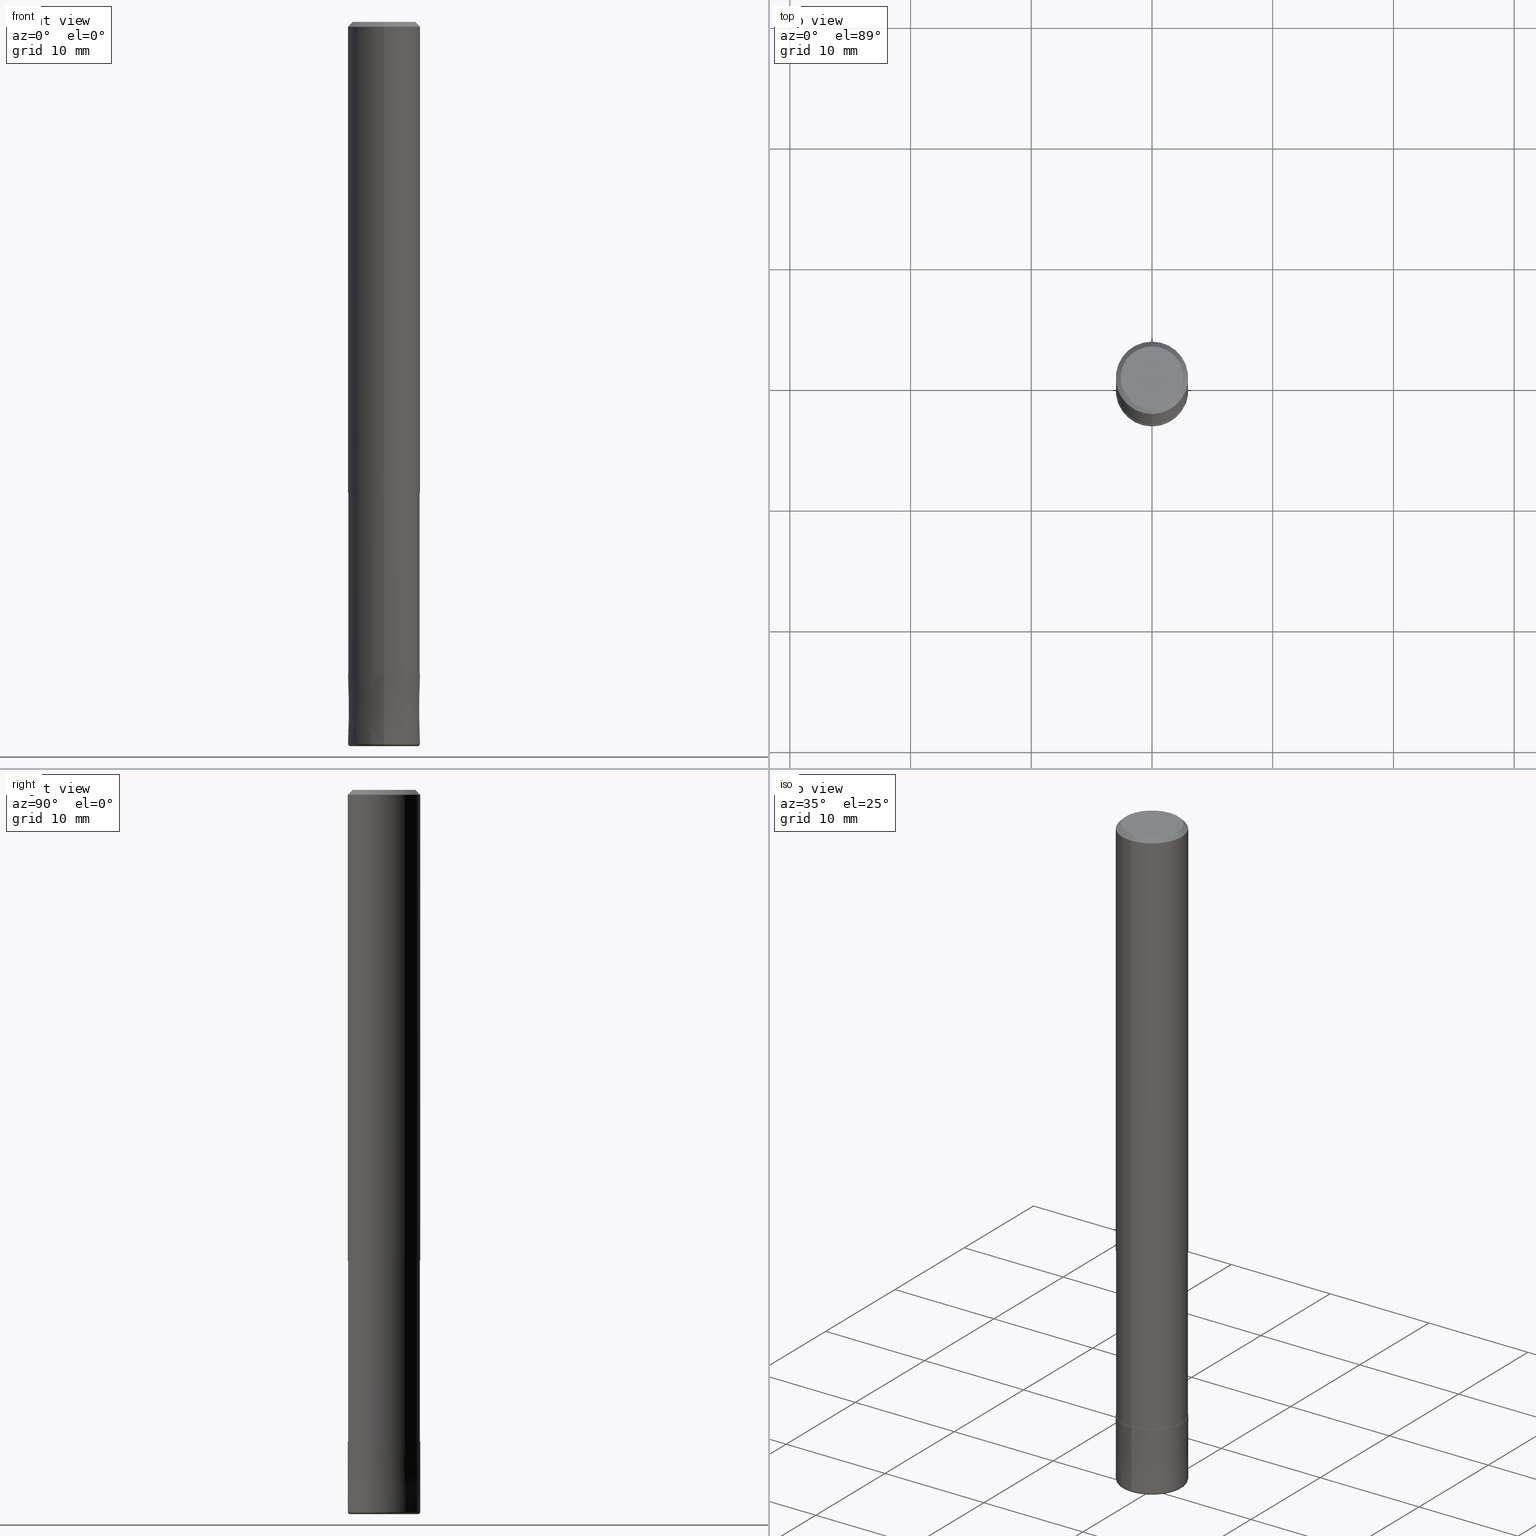
[diagram: canonical four-view strip — front | top / right | iso, engineering-drawing reading convention]
A machine part, canonical four-view strip (front | top / right | iso — engineering-drawing reading convention). The complete STEP part file that produces these views, byte-faithful:
ISO-10303-21;
HEADER;
FILE_DESCRIPTION(('no description'),'unknown implementation level');
FILE_NAME('HHRS6060-02-210-Huellk.stp','  ',('CIMSOURCE GmbH'),('CADClick - KiM GmbH - www.kimweb.de'),'unknown preprocess','ACIS','unknown authorization');
FILE_SCHEMA(('automotive_design'));
ENDSEC;
DATA;
#1=MECHANICAL_DESIGN_GEOMETRIC_PRESENTATION_REPRESENTATION(' ',(#14,#15,#16,#17,#18,#19,#20,#21,#22,#23,#24,#25,#26,#27,#28,#29,#30,#31,#32,#33,#34,#35,#36,#37,#38,#39,#40,#41,#42,#43,#44,#45,#46,#47,#48,#49,#50,#51,#52,#53,#54,#55,#56,#57,#58,#59,#60,#61,#62,#63,#64,#65,#66,#67,#68,#69,#70,#71,#72,#73,#74,#75,#76,#77,#78,#79,#80,#81,#82,#83,#84,#85,#86,#87,#88,#89,#90,#91,#92,#93,#94,#95,#96,#97),#10);
#2=PRODUCT_DEFINITION_CONTEXT('',#98,'design');
#3=APPLICATION_PROTOCOL_DEFINITION('INTERNATIONAL STANDARD','automotive_design',1994,#98);
#4=PRODUCT_CATEGORY_RELATIONSHIP('NONE','NONE',#99,#100);
#5=SHAPE_DEFINITION_REPRESENTATION(#101,#102);
#6=PRODUCT_DEFINITION_CONTEXT('',#103,'design');
#7=APPLICATION_PROTOCOL_DEFINITION('INTERNATIONAL STANDARD','automotive_design',1994,#103);
#8=PRODUCT_CATEGORY_RELATIONSHIP('NONE','NONE',#104,#105);
#9=SHAPE_DEFINITION_REPRESENTATION(#106,#107);
#10= (GEOMETRIC_REPRESENTATION_CONTEXT(3)GLOBAL_UNCERTAINTY_ASSIGNED_CONTEXT((#110))GLOBAL_UNIT_ASSIGNED_CONTEXT((#112,#113,#114))REPRESENTATION_CONTEXT('NONE','WORKSPACE'));
#14=STYLED_ITEM('',(#116),#117);
#15=STYLED_ITEM('',(#118),#119);
#16=STYLED_ITEM('',(#120),#121);
#17=STYLED_ITEM('',(#122),#123);
#18=STYLED_ITEM('',(#124),#125);
#19=STYLED_ITEM('',(#126),#127);
#20=STYLED_ITEM('',(#128),#129);
#21=STYLED_ITEM('',(#130),#131);
#22=STYLED_ITEM('',(#132),#133);
#23=STYLED_ITEM('',(#134),#135);
#24=STYLED_ITEM('',(#136),#137);
#25=STYLED_ITEM('',(#138),#139);
#26=STYLED_ITEM('',(#140),#141);
#27=STYLED_ITEM('',(#142),#143);
#28=STYLED_ITEM('',(#144),#145);
#29=STYLED_ITEM('',(#146),#147);
#30=STYLED_ITEM('',(#148),#149);
#31=STYLED_ITEM('',(#150),#151);
#32=STYLED_ITEM('',(#152),#153);
#33=STYLED_ITEM('',(#154),#155);
#34=STYLED_ITEM('',(#156),#157);
#35=STYLED_ITEM('',(#158),#159);
#36=STYLED_ITEM('',(#160),#161);
#37=STYLED_ITEM('',(#162),#163);
#38=STYLED_ITEM('',(#164),#165);
#39=STYLED_ITEM('',(#166),#167);
#40=STYLED_ITEM('',(#168),#169);
#41=STYLED_ITEM('',(#170),#171);
#42=STYLED_ITEM('',(#172),#173);
#43=STYLED_ITEM('',(#174),#175);
#44=STYLED_ITEM('',(#176),#177);
#45=STYLED_ITEM('',(#178),#179);
#46=STYLED_ITEM('',(#180),#181);
#47=STYLED_ITEM('',(#182),#183);
#48=STYLED_ITEM('',(#184),#185);
#49=STYLED_ITEM('',(#186),#187);
#50=STYLED_ITEM('',(#188),#189);
#51=STYLED_ITEM('',(#190),#191);
#52=STYLED_ITEM('',(#192),#193);
#53=STYLED_ITEM('',(#194),#195);
#54=STYLED_ITEM('',(#196),#197);
#55=STYLED_ITEM('',(#198),#199);
#56=STYLED_ITEM('',(#200),#201);
#57=STYLED_ITEM('',(#202),#203);
#58=STYLED_ITEM('',(#204),#205);
#59=STYLED_ITEM('',(#206),#207);
#60=STYLED_ITEM('',(#208),#209);
#61=STYLED_ITEM('',(#210),#211);
#62=STYLED_ITEM('',(#212),#213);
#63=STYLED_ITEM('',(#214),#215);
#64=STYLED_ITEM('',(#216),#217);
#65=STYLED_ITEM('',(#218),#219);
#66=STYLED_ITEM('',(#220),#221);
#67=STYLED_ITEM('',(#222),#223);
#68=STYLED_ITEM('',(#224),#225);
#69=STYLED_ITEM('',(#226),#227);
#70=STYLED_ITEM('',(#228),#229);
#71=STYLED_ITEM('',(#230),#231);
#72=STYLED_ITEM('',(#232),#233);
#73=STYLED_ITEM('',(#234),#235);
#74=STYLED_ITEM('',(#236),#237);
#75=STYLED_ITEM('',(#238),#239);
#76=STYLED_ITEM('',(#240),#241);
#77=STYLED_ITEM('',(#242),#243);
#78=STYLED_ITEM('',(#244),#245);
#79=STYLED_ITEM('',(#246),#247);
#80=STYLED_ITEM('',(#248),#249);
#81=STYLED_ITEM('',(#250),#251);
#82=STYLED_ITEM('',(#252),#253);
#83=STYLED_ITEM('',(#254),#255);
#84=STYLED_ITEM('',(#256),#257);
#85=STYLED_ITEM('',(#258),#259);
#86=STYLED_ITEM('',(#260),#261);
#87=STYLED_ITEM('',(#262),#263);
#88=STYLED_ITEM('',(#264),#265);
#89=STYLED_ITEM('',(#266),#267);
#90=STYLED_ITEM('',(#268),#269);
#91=STYLED_ITEM('',(#270),#271);
#92=STYLED_ITEM('',(#272),#273);
#93=STYLED_ITEM('',(#274),#275);
#94=STYLED_ITEM('',(#276),#277);
#95=STYLED_ITEM('',(#278),#279);
#96=STYLED_ITEM('',(#280),#281);
#97=STYLED_ITEM('',(#282),#283);
#98=APPLICATION_CONTEXT(' ');
#99=PRODUCT_CATEGORY('part','NONE');
#100=PRODUCT_RELATED_PRODUCT_CATEGORY('detail',' ',(#284));
#101=PRODUCT_DEFINITION_SHAPE('NONE','NONE',#285);
#102=ADVANCED_BREP_SHAPE_REPRESENTATION('1',(#139,#286),#10);
#103=APPLICATION_CONTEXT(' ');
#104=PRODUCT_CATEGORY('part','NONE');
#105=PRODUCT_RELATED_PRODUCT_CATEGORY('detail',' ',(#287));
#106=PRODUCT_DEFINITION_SHAPE('NONE','NONE',#288);
#107=ADVANCED_BREP_SHAPE_REPRESENTATION('2',(#197,#289),#10);
#110=UNCERTAINTY_MEASURE_WITH_UNIT(LENGTH_MEASURE(1.0E-006),#112,'','');
#112= (CONVERSION_BASED_UNIT('MILLIMETRE',#292)LENGTH_UNIT()NAMED_UNIT(#295));
#113= (NAMED_UNIT(#297)PLANE_ANGLE_UNIT()SI_UNIT($,.RADIAN.));
#114= (NAMED_UNIT(#297)SOLID_ANGLE_UNIT()SI_UNIT($,.STERADIAN.));
#116=PRESENTATION_STYLE_ASSIGNMENT((#303));
#117=VERTEX_POINT('',#304);
#118=PRESENTATION_STYLE_ASSIGNMENT((#305));
#119=VERTEX_POINT('',#306);
#120=PRESENTATION_STYLE_ASSIGNMENT((#307));
#121=EDGE_CURVE('',#255,#283,#308,.T.);
#122=PRESENTATION_STYLE_ASSIGNMENT((#309));
#123=EDGE_CURVE('',#177,#179,#310,.T.);
#124=PRESENTATION_STYLE_ASSIGNMENT((#311));
#125=ADVANCED_FACE('',(#312,#313),#314,.T.);
#126=PRESENTATION_STYLE_ASSIGNMENT((#315));
#127=ADVANCED_FACE('',(#316),#317,.T.);
#128=PRESENTATION_STYLE_ASSIGNMENT((#318));
#129=EDGE_CURVE('',#277,#187,#319,.T.);
#130=PRESENTATION_STYLE_ASSIGNMENT((#320));
#131=VERTEX_POINT('',#321);
#132=PRESENTATION_STYLE_ASSIGNMENT((#322));
#133=EDGE_CURVE('',#277,#191,#323,.T.);
#134=PRESENTATION_STYLE_ASSIGNMENT((#324));
#135=VERTEX_POINT('',#325);
#136=PRESENTATION_STYLE_ASSIGNMENT((#326));
#137=EDGE_CURVE('',#179,#151,#327,.T.);
#138=PRESENTATION_STYLE_ASSIGNMENT((#328));
#139=MANIFOLD_SOLID_BREP('1',#329);
#140=PRESENTATION_STYLE_ASSIGNMENT((#330));
#141=EDGE_CURVE('',#219,#145,#331,.T.);
#142=PRESENTATION_STYLE_ASSIGNMENT((#332));
#143=EDGE_CURVE('',#187,#119,#333,.T.);
#144=PRESENTATION_STYLE_ASSIGNMENT((#334));
#145=VERTEX_POINT('',#335);
#146=PRESENTATION_STYLE_ASSIGNMENT((#336));
#147=EDGE_CURVE('',#269,#267,#337,.T.);
#148=PRESENTATION_STYLE_ASSIGNMENT((#338));
#149=ADVANCED_FACE('',(#339),#340,.T.);
#150=PRESENTATION_STYLE_ASSIGNMENT((#341));
#151=VERTEX_POINT('',#342);
#152=PRESENTATION_STYLE_ASSIGNMENT((#343));
#153=EDGE_CURVE('',#131,#119,#344,.T.);
#154=PRESENTATION_STYLE_ASSIGNMENT((#345));
#155=ADVANCED_FACE('',(#346,#347),#348,.T.);
#156=PRESENTATION_STYLE_ASSIGNMENT((#349));
#157=VERTEX_POINT('',#350);
#158=PRESENTATION_STYLE_ASSIGNMENT((#351));
#159=EDGE_CURVE('',#269,#135,#352,.T.);
#160=PRESENTATION_STYLE_ASSIGNMENT((#353));
#161=EDGE_CURVE('',#119,#187,#354,.T.);
#162=PRESENTATION_STYLE_ASSIGNMENT((#355));
#163=VERTEX_POINT('',#356);
#164=PRESENTATION_STYLE_ASSIGNMENT((#357));
#165=ADVANCED_FACE('',(#358),#359,.T.);
#166=PRESENTATION_STYLE_ASSIGNMENT((#360));
#167=ADVANCED_FACE('',(#361),#362,.T.);
#168=PRESENTATION_STYLE_ASSIGNMENT((#363));
#169=EDGE_CURVE('',#265,#233,#364,.T.);
#170=PRESENTATION_STYLE_ASSIGNMENT((#365));
#171=ADVANCED_FACE('',(#366),#367,.T.);
#172=PRESENTATION_STYLE_ASSIGNMENT((#368));
#173=EDGE_CURVE('',#251,#151,#369,.T.);
#174=PRESENTATION_STYLE_ASSIGNMENT((#370));
#175=EDGE_CURVE('',#157,#267,#371,.T.);
#176=PRESENTATION_STYLE_ASSIGNMENT((#372));
#177=VERTEX_POINT('',#373);
#178=PRESENTATION_STYLE_ASSIGNMENT((#374));
#179=VERTEX_POINT('',#375);
#180=PRESENTATION_STYLE_ASSIGNMENT((#376));
#181=EDGE_CURVE('',#265,#145,#377,.T.);
#182=PRESENTATION_STYLE_ASSIGNMENT((#378));
#183=ADVANCED_FACE('',(#379),#380,.T.);
#184=PRESENTATION_STYLE_ASSIGNMENT((#381));
#185=ADVANCED_FACE('',(#382),#383,.T.);
#186=PRESENTATION_STYLE_ASSIGNMENT((#384));
#187=VERTEX_POINT('',#385);
#188=PRESENTATION_STYLE_ASSIGNMENT((#386));
#189=EDGE_CURVE('',#233,#219,#387,.T.);
#190=PRESENTATION_STYLE_ASSIGNMENT((#388));
#191=VERTEX_POINT('',#389);
#192=PRESENTATION_STYLE_ASSIGNMENT((#390));
#193=ADVANCED_FACE('',(#391),#392,.T.);
#194=PRESENTATION_STYLE_ASSIGNMENT((#393));
#195=EDGE_CURVE('',#117,#235,#394,.T.);
#196=PRESENTATION_STYLE_ASSIGNMENT((#395));
#197=MANIFOLD_SOLID_BREP('2',#396);
#198=PRESENTATION_STYLE_ASSIGNMENT((#397));
#199=ADVANCED_FACE('',(#398),#399,.T.);
#200=PRESENTATION_STYLE_ASSIGNMENT((#400));
#201=EDGE_CURVE('',#227,#163,#401,.T.);
#202=PRESENTATION_STYLE_ASSIGNMENT((#402));
#203=EDGE_CURVE('',#151,#251,#403,.T.);
#204=PRESENTATION_STYLE_ASSIGNMENT((#404));
#205=EDGE_CURVE('',#145,#265,#405,.T.);
#206=PRESENTATION_STYLE_ASSIGNMENT((#406));
#207=ADVANCED_FACE('',(#407,#408),#409,.T.);
#208=PRESENTATION_STYLE_ASSIGNMENT((#410));
#209=EDGE_CURVE('',#227,#255,#411,.T.);
#210=PRESENTATION_STYLE_ASSIGNMENT((#412));
#211=EDGE_CURVE('',#269,#117,#413,.T.);
#212=PRESENTATION_STYLE_ASSIGNMENT((#414));
#213=EDGE_CURVE('',#157,#135,#415,.T.);
#214=PRESENTATION_STYLE_ASSIGNMENT((#416));
#215=EDGE_CURVE('',#235,#117,#417,.T.);
#216=PRESENTATION_STYLE_ASSIGNMENT((#418));
#217=EDGE_CURVE('',#163,#227,#419,.T.);
#218=PRESENTATION_STYLE_ASSIGNMENT((#420));
#219=VERTEX_POINT('',#421);
#220=PRESENTATION_STYLE_ASSIGNMENT((#422));
#221=ADVANCED_FACE('',(#423),#424,.T.);
#222=PRESENTATION_STYLE_ASSIGNMENT((#425));
#223=EDGE_CURVE('',#267,#157,#426,.T.);
#224=PRESENTATION_STYLE_ASSIGNMENT((#427));
#225=EDGE_CURVE('',#131,#261,#428,.T.);
#226=PRESENTATION_STYLE_ASSIGNMENT((#429));
#227=VERTEX_POINT('',#430);
#228=PRESENTATION_STYLE_ASSIGNMENT((#431));
#229=EDGE_CURVE('',#235,#135,#432,.T.);
#230=PRESENTATION_STYLE_ASSIGNMENT((#433));
#231=ADVANCED_FACE('',(#434,#435),#436,.T.);
#232=PRESENTATION_STYLE_ASSIGNMENT((#437));
#233=VERTEX_POINT('',#438);
#234=PRESENTATION_STYLE_ASSIGNMENT((#439));
#235=VERTEX_POINT('',#440);
#236=PRESENTATION_STYLE_ASSIGNMENT((#441));
#237=ADVANCED_FACE('',(#442),#443,.F.);
#238=PRESENTATION_STYLE_ASSIGNMENT((#444));
#239=EDGE_CURVE('',#219,#233,#445,.T.);
#240=PRESENTATION_STYLE_ASSIGNMENT((#446));
#241=EDGE_CURVE('',#187,#261,#447,.T.);
#242=PRESENTATION_STYLE_ASSIGNMENT((#448));
#243=EDGE_CURVE('',#179,#177,#449,.T.);
#244=PRESENTATION_STYLE_ASSIGNMENT((#450));
#245=EDGE_CURVE('',#251,#177,#451,.T.);
#246=PRESENTATION_STYLE_ASSIGNMENT((#452));
#247=EDGE_CURVE('',#119,#191,#453,.T.);
#248=PRESENTATION_STYLE_ASSIGNMENT((#454));
#249=ADVANCED_FACE('',(#455),#456,.T.);
#250=PRESENTATION_STYLE_ASSIGNMENT((#457));
#251=VERTEX_POINT('',#458);
#252=PRESENTATION_STYLE_ASSIGNMENT((#459));
#253=ADVANCED_FACE('',(#460),#461,.T.);
#254=PRESENTATION_STYLE_ASSIGNMENT((#462));
#255=VERTEX_POINT('',#463);
#256=PRESENTATION_STYLE_ASSIGNMENT((#464));
#257=EDGE_CURVE('',#191,#277,#465,.T.);
#258=PRESENTATION_STYLE_ASSIGNMENT((#466));
#259=EDGE_CURVE('',#283,#255,#467,.T.);
#260=PRESENTATION_STYLE_ASSIGNMENT((#468));
#261=VERTEX_POINT('',#469);
#262=PRESENTATION_STYLE_ASSIGNMENT((#470));
#263=EDGE_CURVE('',#261,#131,#471,.T.);
#264=PRESENTATION_STYLE_ASSIGNMENT((#472));
#265=VERTEX_POINT('',#473);
#266=PRESENTATION_STYLE_ASSIGNMENT((#474));
#267=VERTEX_POINT('',#475);
#268=PRESENTATION_STYLE_ASSIGNMENT((#476));
#269=VERTEX_POINT('',#477);
#270=PRESENTATION_STYLE_ASSIGNMENT((#478));
#271=ADVANCED_FACE('',(#479),#480,.F.);
#272=PRESENTATION_STYLE_ASSIGNMENT((#481));
#273=EDGE_CURVE('',#283,#163,#482,.T.);
#274=PRESENTATION_STYLE_ASSIGNMENT((#483));
#275=ADVANCED_FACE('',(#484),#485,.T.);
#276=PRESENTATION_STYLE_ASSIGNMENT((#486));
#277=VERTEX_POINT('',#487);
#278=PRESENTATION_STYLE_ASSIGNMENT((#488));
#279=EDGE_CURVE('',#135,#269,#489,.T.);
#280=PRESENTATION_STYLE_ASSIGNMENT((#490));
#281=ADVANCED_FACE('',(#491),#492,.T.);
#282=PRESENTATION_STYLE_ASSIGNMENT((#493));
#283=VERTEX_POINT('',#494);
#284=PRODUCT('1','1','PART-1-DESC',(#495));
#285=PRODUCT_DEFINITION('NONE','NONE',#496,#2);
#286=AXIS2_PLACEMENT_3D('',#497,#498,#499);
#287=PRODUCT('2','2','PART-2-DESC',(#500));
#288=PRODUCT_DEFINITION('NONE','NONE',#501,#6);
#289=AXIS2_PLACEMENT_3D('',#502,#503,#504);
#292=LENGTH_MEASURE_WITH_UNIT(LENGTH_MEASURE(1.0),#505);
#295=DIMENSIONAL_EXPONENTS(1.0,0.0,0.0,0.0,0.0,0.0,0.0);
#297=DIMENSIONAL_EXPONENTS(0.0,0.0,0.0,0.0,0.0,0.0,0.0);
#303=POINT_STYLE(' ',#506,POSITIVE_LENGTH_MEASURE(1.0E-006),#507);
#304=CARTESIAN_POINT('',(3.42889779070266E-016,-2.8,-60.0));
#305=POINT_STYLE(' ',#508,POSITIVE_LENGTH_MEASURE(1.0E-006),#509);
#306=CARTESIAN_POINT('',(3.67381906146713E-016,-3.0,-0.399999999999999));
#307=CURVE_STYLE('',#510,POSITIVE_LENGTH_MEASURE(1.0E-006),#511);
#308=CIRCLE('',#512,1.35);
#309=CURVE_STYLE('',#513,POSITIVE_LENGTH_MEASURE(1.0E-006),#514);
#310=CIRCLE('',#515,2.97495);
#311=SURFACE_STYLE_USAGE(.BOTH.,#516);
#312=FACE_OUTER_BOUND('',#517,.T.);
#313=FACE_BOUND('',#518,.T.);
#314=PLANE('',#519);
#315=SURFACE_STYLE_USAGE(.BOTH.,#520);
#316=FACE_OUTER_BOUND('',#521,.T.);
#317=PLANE('',#522);
#318=CURVE_STYLE('',#523,POSITIVE_LENGTH_MEASURE(1.0E-006),#524);
#319=LINE('',#525,#526);
#320=POINT_STYLE(' ',#527,POSITIVE_LENGTH_MEASURE(1.0E-006),#528);
#321=CARTESIAN_POINT('',(3.67381906146713E-016,-3.0,-39.0));
#322=CURVE_STYLE('',#529,POSITIVE_LENGTH_MEASURE(1.0E-006),#530);
#323=CIRCLE('',#531,2.6);
#324=POINT_STYLE(' ',#532,POSITIVE_LENGTH_MEASURE(1.0E-006),#533);
#325=CARTESIAN_POINT('',(0.0,3.0,-59.8));
#326=CURVE_STYLE('',#534,POSITIVE_LENGTH_MEASURE(1.0E-006),#535);
#327=LINE('',#536,#537);
#328=SURFACE_STYLE_USAGE(.BOTH.,#538);
#329=CLOSED_SHELL('',(#167,#249,#149,#199,#155,#127,#171,#281,#183,#231,#193,#275));
#330=CURVE_STYLE('',#539,POSITIVE_LENGTH_MEASURE(1.0E-006),#540);
#331=LINE('',#541,#542);
#332=CURVE_STYLE('',#543,POSITIVE_LENGTH_MEASURE(1.0E-006),#544);
#333=CIRCLE('',#545,3.0);
#334=POINT_STYLE(' ',#546,POSITIVE_LENGTH_MEASURE(1.0E-006),#547);
#335=CARTESIAN_POINT('',(0.0,1.35,-59.9));
#336=CURVE_STYLE('',#548,POSITIVE_LENGTH_MEASURE(1.0E-006),#549);
#337=LINE('',#550,#551);
#338=SURFACE_STYLE_USAGE(.BOTH.,#552);
#339=FACE_OUTER_BOUND('',#553,.T.);
#340=CYLINDRICAL_SURFACE('',#554,3.0);
#341=POINT_STYLE(' ',#555,POSITIVE_LENGTH_MEASURE(1.0E-006),#556);
#342=CARTESIAN_POINT('',(3.64314267230388E-016,-2.97495,-39.0));
#343=CURVE_STYLE('',#557,POSITIVE_LENGTH_MEASURE(1.0E-006),#558);
#344=LINE('',#559,#560);
#345=SURFACE_STYLE_USAGE(.BOTH.,#561);
#346=FACE_OUTER_BOUND('',#562,.T.);
#347=FACE_BOUND('',#563,.T.);
#348=PLANE('',#564);
#349=POINT_STYLE(' ',#565,POSITIVE_LENGTH_MEASURE(1.0E-006),#566);
#350=CARTESIAN_POINT('',(0.0,2.9999,-54.0));
#351=CURVE_STYLE('',#567,POSITIVE_LENGTH_MEASURE(1.0E-006),#568);
#352=CIRCLE('',#569,3.0);
#353=CURVE_STYLE('',#570,POSITIVE_LENGTH_MEASURE(1.0E-006),#571);
#354=CIRCLE('',#572,3.0);
#355=POINT_STYLE(' ',#573,POSITIVE_LENGTH_MEASURE(1.0E-006),#574);
#356=CARTESIAN_POINT('',(0.0,1.35,-60.0));
#357=SURFACE_STYLE_USAGE(.BOTH.,#575);
#358=FACE_OUTER_BOUND('',#576,.T.);
#359=TOROIDAL_SURFACE('',#577,2.8,0.199999999999999);
#360=SURFACE_STYLE_USAGE(.BOTH.,#578);
#361=FACE_OUTER_BOUND('',#579,.T.);
#362=CYLINDRICAL_SURFACE('',#580,1.35);
#363=CURVE_STYLE('',#581,POSITIVE_LENGTH_MEASURE(1.0E-006),#582);
#364=LINE('',#583,#584);
#365=SURFACE_STYLE_USAGE(.BOTH.,#585);
#366=FACE_OUTER_BOUND('',#586,.T.);
#367=CONICAL_SURFACE('',#587,2.8,0.78539816339745);
#368=CURVE_STYLE('',#588,POSITIVE_LENGTH_MEASURE(1.0E-006),#589);
#369=CIRCLE('',#590,2.97495);
#370=CURVE_STYLE('',#591,POSITIVE_LENGTH_MEASURE(1.0E-006),#592);
#371=CIRCLE('',#593,2.9999);
#372=POINT_STYLE(' ',#594,POSITIVE_LENGTH_MEASURE(1.0E-006),#595);
#373=CARTESIAN_POINT('',(0.0,2.97495,-54.0));
#374=POINT_STYLE(' ',#596,POSITIVE_LENGTH_MEASURE(1.0E-006),#597);
#375=CARTESIAN_POINT('',(3.64314267230388E-016,-2.97495,-54.0));
#376=CURVE_STYLE('',#598,POSITIVE_LENGTH_MEASURE(1.0E-006),#599);
#377=CIRCLE('',#600,1.35);
#378=SURFACE_STYLE_USAGE(.BOTH.,#601);
#379=FACE_OUTER_BOUND('',#602,.T.);
#380=CYLINDRICAL_SURFACE('',#603,2.97495);
#381=SURFACE_STYLE_USAGE(.BOTH.,#604);
#382=FACE_OUTER_BOUND('',#605,.T.);
#383=CONICAL_SURFACE('',#606,2.99995,1.72413793086728E-005);
#384=POINT_STYLE(' ',#607,POSITIVE_LENGTH_MEASURE(1.0E-006),#608);
#385=CARTESIAN_POINT('',(0.0,3.0,-0.399999999999999));
#386=CURVE_STYLE('',#609,POSITIVE_LENGTH_MEASURE(1.0E-006),#610);
#387=CIRCLE('',#611,1.35);
#388=POINT_STYLE(' ',#612,POSITIVE_LENGTH_MEASURE(1.0E-006),#613);
#389=CARTESIAN_POINT('',(3.18397651993818E-016,-2.6,0.0));
#390=SURFACE_STYLE_USAGE(.BOTH.,#614);
#391=FACE_OUTER_BOUND('',#615,.T.);
#392=CYLINDRICAL_SURFACE('',#616,1.35);
#393=CURVE_STYLE('',#617,POSITIVE_LENGTH_MEASURE(1.0E-006),#618);
#394=CIRCLE('',#619,2.8);
#395=SURFACE_STYLE_USAGE(.BOTH.,#620);
#396=CLOSED_SHELL('',(#271,#221,#253,#125,#185,#165,#207,#237));
#397=SURFACE_STYLE_USAGE(.BOTH.,#621);
#398=FACE_OUTER_BOUND('',#622,.T.);
#399=CONICAL_SURFACE('',#623,2.8,0.78539816339745);
#400=CURVE_STYLE('',#624,POSITIVE_LENGTH_MEASURE(1.0E-006),#625);
#401=CIRCLE('',#626,1.35);
#402=CURVE_STYLE('',#627,POSITIVE_LENGTH_MEASURE(1.0E-006),#628);
#403=CIRCLE('',#629,2.97495);
#404=CURVE_STYLE('',#630,POSITIVE_LENGTH_MEASURE(1.0E-006),#631);
#405=CIRCLE('',#632,1.35);
#406=SURFACE_STYLE_USAGE(.BOTH.,#633);
#407=FACE_BOUND('',#634,.T.);
#408=FACE_OUTER_BOUND('',#635,.T.);
#409=PLANE('',#636);
#410=CURVE_STYLE('',#637,POSITIVE_LENGTH_MEASURE(1.0E-006),#638);
#411=LINE('',#639,#640);
#412=CURVE_STYLE('',#641,POSITIVE_LENGTH_MEASURE(1.0E-006),#642);
#413=CIRCLE('',#643,0.199999999999999);
#414=CURVE_STYLE('',#644,POSITIVE_LENGTH_MEASURE(1.0E-006),#645);
#415=LINE('',#646,#647);
#416=CURVE_STYLE('',#648,POSITIVE_LENGTH_MEASURE(1.0E-006),#649);
#417=CIRCLE('',#650,2.8);
#418=CURVE_STYLE('',#651,POSITIVE_LENGTH_MEASURE(1.0E-006),#652);
#419=CIRCLE('',#653,1.35);
#420=POINT_STYLE(' ',#654,POSITIVE_LENGTH_MEASURE(1.0E-006),#655);
#421=CARTESIAN_POINT('',(0.0,1.35,-54.0));
#422=SURFACE_STYLE_USAGE(.BOTH.,#656);
#423=FACE_OUTER_BOUND('',#657,.T.);
#424=TOROIDAL_SURFACE('',#658,2.8,0.199999999999999);
#425=CURVE_STYLE('',#659,POSITIVE_LENGTH_MEASURE(1.0E-006),#660);
#426=CIRCLE('',#661,2.9999);
#427=CURVE_STYLE('',#662,POSITIVE_LENGTH_MEASURE(1.0E-006),#663);
#428=CIRCLE('',#664,3.0);
#429=POINT_STYLE(' ',#665,POSITIVE_LENGTH_MEASURE(1.0E-006),#666);
#430=CARTESIAN_POINT('',(1.65321857766021E-016,-1.35,-60.0));
#431=CURVE_STYLE('',#667,POSITIVE_LENGTH_MEASURE(1.0E-006),#668);
#432=CIRCLE('',#669,0.199999999999999);
#433=SURFACE_STYLE_USAGE(.BOTH.,#670);
#434=FACE_BOUND('',#671,.T.);
#435=FACE_OUTER_BOUND('',#672,.T.);
#436=PLANE('',#673);
#437=POINT_STYLE(' ',#674,POSITIVE_LENGTH_MEASURE(1.0E-006),#675);
#438=CARTESIAN_POINT('',(1.65321857766021E-016,-1.35,-54.0));
#439=POINT_STYLE(' ',#676,POSITIVE_LENGTH_MEASURE(1.0E-006),#677);
#440=CARTESIAN_POINT('',(0.0,2.8,-60.0));
#441=SURFACE_STYLE_USAGE(.BOTH.,#678);
#442=FACE_OUTER_BOUND('',#679,.T.);
#443=CYLINDRICAL_SURFACE('',#680,1.35);
#444=CURVE_STYLE('',#681,POSITIVE_LENGTH_MEASURE(1.0E-006),#682);
#445=CIRCLE('',#683,1.35);
#446=CURVE_STYLE('',#684,POSITIVE_LENGTH_MEASURE(1.0E-006),#685);
#447=LINE('',#686,#687);
#448=CURVE_STYLE('',#688,POSITIVE_LENGTH_MEASURE(1.0E-006),#689);
#449=CIRCLE('',#690,2.97495);
#450=CURVE_STYLE('',#691,POSITIVE_LENGTH_MEASURE(1.0E-006),#692);
#451=LINE('',#693,#694);
#452=CURVE_STYLE('',#695,POSITIVE_LENGTH_MEASURE(1.0E-006),#696);
#453=LINE('',#697,#698);
#454=SURFACE_STYLE_USAGE(.BOTH.,#699);
#455=FACE_OUTER_BOUND('',#700,.T.);
#456=CYLINDRICAL_SURFACE('',#701,2.97495);
#457=POINT_STYLE(' ',#702,POSITIVE_LENGTH_MEASURE(1.0E-006),#703);
#458=CARTESIAN_POINT('',(0.0,2.97495,-39.0));
#459=SURFACE_STYLE_USAGE(.BOTH.,#704);
#460=FACE_OUTER_BOUND('',#705,.T.);
#461=CONICAL_SURFACE('',#706,2.99995,1.72413793086728E-005);
#462=POINT_STYLE(' ',#707,POSITIVE_LENGTH_MEASURE(1.0E-006),#708);
#463=CARTESIAN_POINT('',(1.65321857766021E-016,-1.35,-54.0));
#464=CURVE_STYLE('',#709,POSITIVE_LENGTH_MEASURE(1.0E-006),#710);
#465=CIRCLE('',#711,2.6);
#466=CURVE_STYLE('',#712,POSITIVE_LENGTH_MEASURE(1.0E-006),#713);
#467=CIRCLE('',#714,1.35);
#468=POINT_STYLE(' ',#715,POSITIVE_LENGTH_MEASURE(1.0E-006),#716);
#469=CARTESIAN_POINT('',(0.0,3.0,-39.0));
#470=CURVE_STYLE('',#717,POSITIVE_LENGTH_MEASURE(1.0E-006),#718);
#471=CIRCLE('',#719,3.0);
#472=POINT_STYLE(' ',#720,POSITIVE_LENGTH_MEASURE(1.0E-006),#721);
#473=CARTESIAN_POINT('',(1.65321857766021E-016,-1.35,-59.9));
#474=POINT_STYLE(' ',#722,POSITIVE_LENGTH_MEASURE(1.0E-006),#723);
#475=CARTESIAN_POINT('',(3.67369660083175E-016,-2.9999,-54.0));
#476=POINT_STYLE(' ',#724,POSITIVE_LENGTH_MEASURE(1.0E-006),#725);
#477=CARTESIAN_POINT('',(3.67381906146713E-016,-3.0,-59.8));
#478=SURFACE_STYLE_USAGE(.BOTH.,#726);
#479=FACE_OUTER_BOUND('',#727,.T.);
#480=CYLINDRICAL_SURFACE('',#728,1.35);
#481=CURVE_STYLE('',#729,POSITIVE_LENGTH_MEASURE(1.0E-006),#730);
#482=LINE('',#731,#732);
#483=SURFACE_STYLE_USAGE(.BOTH.,#733);
#484=FACE_OUTER_BOUND('',#734,.T.);
#485=PLANE('',#735);
#486=POINT_STYLE(' ',#736,POSITIVE_LENGTH_MEASURE(1.0E-006),#737);
#487=CARTESIAN_POINT('',(0.0,2.6,0.0));
#488=CURVE_STYLE('',#738,POSITIVE_LENGTH_MEASURE(1.0E-006),#739);
#489=CIRCLE('',#740,3.0);
#490=SURFACE_STYLE_USAGE(.BOTH.,#741);
#491=FACE_OUTER_BOUND('',#742,.T.);
#492=CYLINDRICAL_SURFACE('',#743,3.0);
#493=POINT_STYLE(' ',#744,POSITIVE_LENGTH_MEASURE(1.0E-006),#745);
#494=CARTESIAN_POINT('',(0.0,1.35,-54.0));
#495=PRODUCT_CONTEXT('',#98,'mechanical');
#496=PRODUCT_DEFINITION_FORMATION_WITH_SPECIFIED_SOURCE(' ','NONE',#284,.NOT_KNOWN.);
#497=CARTESIAN_POINT('',(0.0,0.0,0.0));
#498=DIRECTION('',(0.0,0.0,1.0));
#499=DIRECTION('',(1.0,0.0,0.0));
#500=PRODUCT_CONTEXT('',#103,'mechanical');
#501=PRODUCT_DEFINITION_FORMATION_WITH_SPECIFIED_SOURCE(' ','NONE',#287,.NOT_KNOWN.);
#502=CARTESIAN_POINT('',(0.0,0.0,0.0));
#503=DIRECTION('',(0.0,0.0,1.0));
#504=DIRECTION('',(1.0,0.0,0.0));
#505= (NAMED_UNIT(#295)LENGTH_UNIT()SI_UNIT(.MILLI.,.METRE.));
#506=PRE_DEFINED_MARKER('');
#507=COLOUR_RGB('',0.800000011920929,0.800000011920929,0.800000011920929);
#508=PRE_DEFINED_MARKER('');
#509=COLOUR_RGB('',0.498039215803146,0.498039215803146,0.498039215803146);
#510=DRAUGHTING_PRE_DEFINED_CURVE_FONT('continuous');
#511=COLOUR_RGB('',0.800000011920929,0.800000011920929,0.800000011920929);
#512=AXIS2_PLACEMENT_3D('',#747,#748,#749);
#513=DRAUGHTING_PRE_DEFINED_CURVE_FONT('continuous');
#514=COLOUR_RGB('',0.498039215803146,0.498039215803146,0.498039215803146);
#515=AXIS2_PLACEMENT_3D('',#750,#751,#752);
#516=SURFACE_SIDE_STYLE('',(#753));
#517=EDGE_LOOP('',(#754,#755));
#518=EDGE_LOOP('',(#756,#757));
#519=AXIS2_PLACEMENT_3D('',#758,#759,#760);
#520=SURFACE_SIDE_STYLE('',(#761));
#521=EDGE_LOOP('',(#762,#763));
#522=AXIS2_PLACEMENT_3D('',#764,#765,#766);
#523=DRAUGHTING_PRE_DEFINED_CURVE_FONT('continuous');
#524=COLOUR_RGB('',0.498039215803146,0.498039215803146,0.498039215803146);
#525=CARTESIAN_POINT('',(-3.42889779070266E-016,2.8,-0.200000000000003));
#526=VECTOR('',#767,1.0);
#527=PRE_DEFINED_MARKER('');
#528=COLOUR_RGB('',0.498039215803146,0.498039215803146,0.498039215803146);
#529=DRAUGHTING_PRE_DEFINED_CURVE_FONT('continuous');
#530=COLOUR_RGB('',0.498039215803146,0.498039215803146,0.498039215803146);
#531=AXIS2_PLACEMENT_3D('',#768,#769,#770);
#532=PRE_DEFINED_MARKER('');
#533=COLOUR_RGB('',0.800000011920929,0.800000011920929,0.800000011920929);
#534=DRAUGHTING_PRE_DEFINED_CURVE_FONT('continuous');
#535=COLOUR_RGB('',0.498039215803146,0.498039215803146,0.498039215803146);
#536=CARTESIAN_POINT('',(3.64314267230388E-016,-2.97495,-46.5));
#537=VECTOR('',#771,1.0);
#538=SURFACE_SIDE_STYLE('',(#772));
#539=DRAUGHTING_PRE_DEFINED_CURVE_FONT('continuous');
#540=COLOUR_RGB('',0.498039215803146,0.498039215803146,0.498039215803146);
#541=CARTESIAN_POINT('',(-1.65321857766021E-016,1.35,-56.95));
#542=VECTOR('',#773,1.0);
#543=DRAUGHTING_PRE_DEFINED_CURVE_FONT('continuous');
#544=COLOUR_RGB('',0.498039215803146,0.498039215803146,0.498039215803146);
#545=AXIS2_PLACEMENT_3D('',#774,#775,#776);
#546=PRE_DEFINED_MARKER('');
#547=COLOUR_RGB('',0.498039215803146,0.498039215803146,0.498039215803146);
#548=DRAUGHTING_PRE_DEFINED_CURVE_FONT('continuous');
#549=COLOUR_RGB('',0.800000011920929,0.800000011920929,0.800000011920929);
#550=CARTESIAN_POINT('',(3.67375783114944E-016,-2.99995,-56.9));
#551=VECTOR('',#777,1.0);
#552=SURFACE_SIDE_STYLE('',(#778));
#553=EDGE_LOOP('',(#779,#780,#781,#782));
#554=AXIS2_PLACEMENT_3D('',#783,#784,#785);
#555=PRE_DEFINED_MARKER('');
#556=COLOUR_RGB('',0.498039215803146,0.498039215803146,0.498039215803146);
#557=DRAUGHTING_PRE_DEFINED_CURVE_FONT('continuous');
#558=COLOUR_RGB('',0.498039215803146,0.498039215803146,0.498039215803146);
#559=CARTESIAN_POINT('',(3.67381906146713E-016,-3.0,-19.7));
#560=VECTOR('',#786,1.0);
#561=SURFACE_SIDE_STYLE('',(#787));
#562=EDGE_LOOP('',(#788,#789));
#563=EDGE_LOOP('',(#790,#791));
#564=AXIS2_PLACEMENT_3D('',#792,#793,#794);
#565=PRE_DEFINED_MARKER('');
#566=COLOUR_RGB('',0.800000011920929,0.800000011920929,0.800000011920929);
#567=DRAUGHTING_PRE_DEFINED_CURVE_FONT('continuous');
#568=COLOUR_RGB('',0.800000011920929,0.800000011920929,0.800000011920929);
#569=AXIS2_PLACEMENT_3D('',#795,#796,#797);
#570=DRAUGHTING_PRE_DEFINED_CURVE_FONT('continuous');
#571=COLOUR_RGB('',0.498039215803146,0.498039215803146,0.498039215803146);
#572=AXIS2_PLACEMENT_3D('',#798,#799,#800);
#573=PRE_DEFINED_MARKER('');
#574=COLOUR_RGB('',0.800000011920929,0.800000011920929,0.800000011920929);
#575=SURFACE_SIDE_STYLE('',(#801));
#576=EDGE_LOOP('',(#802,#803,#804,#805));
#577=AXIS2_PLACEMENT_3D('',#806,#807,#808);
#578=SURFACE_SIDE_STYLE('',(#809));
#579=EDGE_LOOP('',(#810,#811,#812,#813));
#580=AXIS2_PLACEMENT_3D('',#814,#815,#816);
#581=DRAUGHTING_PRE_DEFINED_CURVE_FONT('continuous');
#582=COLOUR_RGB('',0.498039215803146,0.498039215803146,0.498039215803146);
#583=CARTESIAN_POINT('',(1.65321857766021E-016,-1.35,-56.95));
#584=VECTOR('',#817,1.0);
#585=SURFACE_SIDE_STYLE('',(#818));
#586=EDGE_LOOP('',(#819,#820,#821,#822));
#587=AXIS2_PLACEMENT_3D('',#823,#824,#825);
#588=DRAUGHTING_PRE_DEFINED_CURVE_FONT('continuous');
#589=COLOUR_RGB('',0.498039215803146,0.498039215803146,0.498039215803146);
#590=AXIS2_PLACEMENT_3D('',#826,#827,#828);
#591=DRAUGHTING_PRE_DEFINED_CURVE_FONT('continuous');
#592=COLOUR_RGB('',0.800000011920929,0.800000011920929,0.800000011920929);
#593=AXIS2_PLACEMENT_3D('',#829,#830,#831);
#594=PRE_DEFINED_MARKER('');
#595=COLOUR_RGB('',0.498039215803146,0.498039215803146,0.498039215803146);
#596=PRE_DEFINED_MARKER('');
#597=COLOUR_RGB('',0.498039215803146,0.498039215803146,0.498039215803146);
#598=DRAUGHTING_PRE_DEFINED_CURVE_FONT('continuous');
#599=COLOUR_RGB('',0.498039215803146,0.498039215803146,0.498039215803146);
#600=AXIS2_PLACEMENT_3D('',#832,#833,#834);
#601=SURFACE_SIDE_STYLE('',(#835));
#602=EDGE_LOOP('',(#836,#837,#838,#839));
#603=AXIS2_PLACEMENT_3D('',#840,#841,#842);
#604=SURFACE_SIDE_STYLE('',(#843));
#605=EDGE_LOOP('',(#844,#845,#846,#847));
#606=AXIS2_PLACEMENT_3D('',#848,#849,#850);
#607=PRE_DEFINED_MARKER('');
#608=COLOUR_RGB('',0.498039215803146,0.498039215803146,0.498039215803146);
#609=DRAUGHTING_PRE_DEFINED_CURVE_FONT('continuous');
#610=COLOUR_RGB('',0.498039215803146,0.498039215803146,0.498039215803146);
#611=AXIS2_PLACEMENT_3D('',#851,#852,#853);
#612=PRE_DEFINED_MARKER('');
#613=COLOUR_RGB('',0.498039215803146,0.498039215803146,0.498039215803146);
#614=SURFACE_SIDE_STYLE('',(#854));
#615=EDGE_LOOP('',(#855,#856,#857,#858));
#616=AXIS2_PLACEMENT_3D('',#859,#860,#861);
#617=DRAUGHTING_PRE_DEFINED_CURVE_FONT('continuous');
#618=COLOUR_RGB('',0.800000011920929,0.800000011920929,0.800000011920929);
#619=AXIS2_PLACEMENT_3D('',#862,#863,#864);
#620=SURFACE_SIDE_STYLE('',(#865));
#621=SURFACE_SIDE_STYLE('',(#866));
#622=EDGE_LOOP('',(#867,#868,#869,#870));
#623=AXIS2_PLACEMENT_3D('',#871,#872,#873);
#624=DRAUGHTING_PRE_DEFINED_CURVE_FONT('continuous');
#625=COLOUR_RGB('',0.800000011920929,0.800000011920929,0.800000011920929);
#626=AXIS2_PLACEMENT_3D('',#874,#875,#876);
#627=DRAUGHTING_PRE_DEFINED_CURVE_FONT('continuous');
#628=COLOUR_RGB('',0.498039215803146,0.498039215803146,0.498039215803146);
#629=AXIS2_PLACEMENT_3D('',#877,#878,#879);
#630=DRAUGHTING_PRE_DEFINED_CURVE_FONT('continuous');
#631=COLOUR_RGB('',0.498039215803146,0.498039215803146,0.498039215803146);
#632=AXIS2_PLACEMENT_3D('',#880,#881,#882);
#633=SURFACE_SIDE_STYLE('',(#883));
#634=EDGE_LOOP('',(#884,#885));
#635=EDGE_LOOP('',(#886,#887));
#636=AXIS2_PLACEMENT_3D('',#888,#889,#890);
#637=DRAUGHTING_PRE_DEFINED_CURVE_FONT('continuous');
#638=COLOUR_RGB('',0.800000011920929,0.800000011920929,0.800000011920929);
#639=CARTESIAN_POINT('',(1.65321857766021E-016,-1.35,-57.0));
#640=VECTOR('',#891,1.0);
#641=DRAUGHTING_PRE_DEFINED_CURVE_FONT('continuous');
#642=COLOUR_RGB('',0.800000011920929,0.800000011920929,0.800000011920929);
#643=AXIS2_PLACEMENT_3D('',#892,#893,#894);
#644=DRAUGHTING_PRE_DEFINED_CURVE_FONT('continuous');
#645=COLOUR_RGB('',0.800000011920929,0.800000011920929,0.800000011920929);
#646=CARTESIAN_POINT('',(-3.67375783114944E-016,2.99995,-56.9));
#647=VECTOR('',#895,1.0);
#648=DRAUGHTING_PRE_DEFINED_CURVE_FONT('continuous');
#649=COLOUR_RGB('',0.800000011920929,0.800000011920929,0.800000011920929);
#650=AXIS2_PLACEMENT_3D('',#896,#897,#898);
#651=DRAUGHTING_PRE_DEFINED_CURVE_FONT('continuous');
#652=COLOUR_RGB('',0.800000011920929,0.800000011920929,0.800000011920929);
#653=AXIS2_PLACEMENT_3D('',#899,#900,#901);
#654=PRE_DEFINED_MARKER('');
#655=COLOUR_RGB('',0.498039215803146,0.498039215803146,0.498039215803146);
#656=SURFACE_SIDE_STYLE('',(#902));
#657=EDGE_LOOP('',(#903,#904,#905,#906));
#658=AXIS2_PLACEMENT_3D('',#907,#908,#909);
#659=DRAUGHTING_PRE_DEFINED_CURVE_FONT('continuous');
#660=COLOUR_RGB('',0.800000011920929,0.800000011920929,0.800000011920929);
#661=AXIS2_PLACEMENT_3D('',#910,#911,#912);
#662=DRAUGHTING_PRE_DEFINED_CURVE_FONT('continuous');
#663=COLOUR_RGB('',0.498039215803146,0.498039215803146,0.498039215803146);
#664=AXIS2_PLACEMENT_3D('',#913,#914,#915);
#665=PRE_DEFINED_MARKER('');
#666=COLOUR_RGB('',0.800000011920929,0.800000011920929,0.800000011920929);
#667=DRAUGHTING_PRE_DEFINED_CURVE_FONT('continuous');
#668=COLOUR_RGB('',0.800000011920929,0.800000011920929,0.800000011920929);
#669=AXIS2_PLACEMENT_3D('',#916,#917,#918);
#670=SURFACE_SIDE_STYLE('',(#919));
#671=EDGE_LOOP('',(#920,#921));
#672=EDGE_LOOP('',(#922,#923));
#673=AXIS2_PLACEMENT_3D('',#924,#925,#926);
#674=PRE_DEFINED_MARKER('');
#675=COLOUR_RGB('',0.498039215803146,0.498039215803146,0.498039215803146);
#676=PRE_DEFINED_MARKER('');
#677=COLOUR_RGB('',0.800000011920929,0.800000011920929,0.800000011920929);
#678=SURFACE_SIDE_STYLE('',(#927));
#679=EDGE_LOOP('',(#928,#929,#930,#931));
#680=AXIS2_PLACEMENT_3D('',#932,#933,#934);
#681=DRAUGHTING_PRE_DEFINED_CURVE_FONT('continuous');
#682=COLOUR_RGB('',0.498039215803146,0.498039215803146,0.498039215803146);
#683=AXIS2_PLACEMENT_3D('',#935,#936,#937);
#684=DRAUGHTING_PRE_DEFINED_CURVE_FONT('continuous');
#685=COLOUR_RGB('',0.498039215803146,0.498039215803146,0.498039215803146);
#686=CARTESIAN_POINT('',(-3.67381906146713E-016,3.0,-19.7));
#687=VECTOR('',#938,1.0);
#688=DRAUGHTING_PRE_DEFINED_CURVE_FONT('continuous');
#689=COLOUR_RGB('',0.498039215803146,0.498039215803146,0.498039215803146);
#690=AXIS2_PLACEMENT_3D('',#939,#940,#941);
#691=DRAUGHTING_PRE_DEFINED_CURVE_FONT('continuous');
#692=COLOUR_RGB('',0.498039215803146,0.498039215803146,0.498039215803146);
#693=CARTESIAN_POINT('',(-3.64314267230388E-016,2.97495,-46.5));
#694=VECTOR('',#942,1.0);
#695=DRAUGHTING_PRE_DEFINED_CURVE_FONT('continuous');
#696=COLOUR_RGB('',0.498039215803146,0.498039215803146,0.498039215803146);
#697=CARTESIAN_POINT('',(3.42889779070266E-016,-2.8,-0.200000000000003));
#698=VECTOR('',#943,1.0);
#699=SURFACE_SIDE_STYLE('',(#944));
#700=EDGE_LOOP('',(#945,#946,#947,#948));
#701=AXIS2_PLACEMENT_3D('',#949,#950,#951);
#702=PRE_DEFINED_MARKER('');
#703=COLOUR_RGB('',0.498039215803146,0.498039215803146,0.498039215803146);
#704=SURFACE_SIDE_STYLE('',(#952));
#705=EDGE_LOOP('',(#953,#954,#955,#956));
#706=AXIS2_PLACEMENT_3D('',#957,#958,#959);
#707=PRE_DEFINED_MARKER('');
#708=COLOUR_RGB('',0.800000011920929,0.800000011920929,0.800000011920929);
#709=DRAUGHTING_PRE_DEFINED_CURVE_FONT('continuous');
#710=COLOUR_RGB('',0.498039215803146,0.498039215803146,0.498039215803146);
#711=AXIS2_PLACEMENT_3D('',#960,#961,#962);
#712=DRAUGHTING_PRE_DEFINED_CURVE_FONT('continuous');
#713=COLOUR_RGB('',0.800000011920929,0.800000011920929,0.800000011920929);
#714=AXIS2_PLACEMENT_3D('',#963,#964,#965);
#715=PRE_DEFINED_MARKER('');
#716=COLOUR_RGB('',0.498039215803146,0.498039215803146,0.498039215803146);
#717=DRAUGHTING_PRE_DEFINED_CURVE_FONT('continuous');
#718=COLOUR_RGB('',0.498039215803146,0.498039215803146,0.498039215803146);
#719=AXIS2_PLACEMENT_3D('',#966,#967,#968);
#720=PRE_DEFINED_MARKER('');
#721=COLOUR_RGB('',0.498039215803146,0.498039215803146,0.498039215803146);
#722=PRE_DEFINED_MARKER('');
#723=COLOUR_RGB('',0.800000011920929,0.800000011920929,0.800000011920929);
#724=PRE_DEFINED_MARKER('');
#725=COLOUR_RGB('',0.800000011920929,0.800000011920929,0.800000011920929);
#726=SURFACE_SIDE_STYLE('',(#969));
#727=EDGE_LOOP('',(#970,#971,#972,#973));
#728=AXIS2_PLACEMENT_3D('',#974,#975,#976);
#729=DRAUGHTING_PRE_DEFINED_CURVE_FONT('continuous');
#730=COLOUR_RGB('',0.800000011920929,0.800000011920929,0.800000011920929);
#731=CARTESIAN_POINT('',(-1.65321857766021E-016,1.35,-57.0));
#732=VECTOR('',#977,1.0);
#733=SURFACE_SIDE_STYLE('',(#978));
#734=EDGE_LOOP('',(#979,#980));
#735=AXIS2_PLACEMENT_3D('',#981,#982,#983);
#736=PRE_DEFINED_MARKER('');
#737=COLOUR_RGB('',0.498039215803146,0.498039215803146,0.498039215803146);
#738=DRAUGHTING_PRE_DEFINED_CURVE_FONT('continuous');
#739=COLOUR_RGB('',0.800000011920929,0.800000011920929,0.800000011920929);
#740=AXIS2_PLACEMENT_3D('',#984,#985,#986);
#741=SURFACE_SIDE_STYLE('',(#987));
#742=EDGE_LOOP('',(#988,#989,#990,#991));
#743=AXIS2_PLACEMENT_3D('',#992,#993,#994);
#744=PRE_DEFINED_MARKER('');
#745=COLOUR_RGB('',0.800000011920929,0.800000011920929,0.800000011920929);
#747=CARTESIAN_POINT('',(0.0,0.0,-54.0));
#748=DIRECTION('',(0.0,0.0,-1.0));
#749=DIRECTION('',(0.0,1.0,0.0));
#750=CARTESIAN_POINT('',(0.0,0.0,-54.0));
#751=DIRECTION('',(0.0,0.0,-1.0));
#752=DIRECTION('',(0.0,1.0,0.0));
#753=SURFACE_STYLE_FILL_AREA(#995);
#754=ORIENTED_EDGE('',*,*,#175,.F.);
#755=ORIENTED_EDGE('',*,*,#223,.F.);
#756=ORIENTED_EDGE('',*,*,#259,.T.);
#757=ORIENTED_EDGE('',*,*,#121,.T.);
#758=CARTESIAN_POINT('',(0.0,2.17495,-54.0));
#759=DIRECTION('',(-0.0,0.0,1.0));
#760=DIRECTION('',(0.0,-1.0,0.0));
#761=SURFACE_STYLE_FILL_AREA(#996);
#762=ORIENTED_EDGE('',*,*,#133,.F.);
#763=ORIENTED_EDGE('',*,*,#257,.F.);
#764=CARTESIAN_POINT('',(0.0,1.3,0.0));
#765=DIRECTION('',(-0.0,0.0,1.0));
#766=DIRECTION('',(0.0,-1.0,0.0));
#767=DIRECTION('',(-8.65927457071937E-017,0.707106781186549,-0.707106781186546));
#768=CARTESIAN_POINT('',(0.0,0.0,0.0));
#769=DIRECTION('',(0.0,0.0,-1.0));
#770=DIRECTION('',(0.0,1.0,0.0));
#771=DIRECTION('',(-0.0,-0.0,1.0));
#772=SURFACE_STYLE_FILL_AREA(#997);
#773=DIRECTION('',(0.0,0.0,-1.0));
#774=CARTESIAN_POINT('',(0.0,0.0,-0.399999999999999));
#775=DIRECTION('',(0.0,0.0,-1.0));
#776=DIRECTION('',(0.0,1.0,0.0));
#777=DIRECTION('',(-2.11139026490163E-021,1.72413793078186E-005,0.999999999851368));
#778=SURFACE_STYLE_FILL_AREA(#998);
#779=ORIENTED_EDGE('',*,*,#241,.F.);
#780=ORIENTED_EDGE('',*,*,#143,.T.);
#781=ORIENTED_EDGE('',*,*,#153,.F.);
#782=ORIENTED_EDGE('',*,*,#263,.F.);
#783=CARTESIAN_POINT('',(0.0,0.0,-19.7));
#784=DIRECTION('',(-0.0,-0.0,1.0));
#785=DIRECTION('',(0.0,1.0,0.0));
#786=DIRECTION('',(-0.0,-0.0,1.0));
#787=SURFACE_STYLE_FILL_AREA(#999);
#788=ORIENTED_EDGE('',*,*,#263,.T.);
#789=ORIENTED_EDGE('',*,*,#225,.T.);
#790=ORIENTED_EDGE('',*,*,#173,.F.);
#791=ORIENTED_EDGE('',*,*,#203,.F.);
#792=CARTESIAN_POINT('',(0.0,1.5,-39.0));
#793=DIRECTION('',(0.0,0.0,-1.0));
#794=DIRECTION('',(0.0,1.0,0.0));
#795=CARTESIAN_POINT('',(0.0,0.0,-59.8));
#796=DIRECTION('',(0.0,0.0,-1.0));
#797=DIRECTION('',(0.0,1.0,0.0));
#798=CARTESIAN_POINT('',(0.0,0.0,-0.399999999999999));
#799=DIRECTION('',(0.0,0.0,-1.0));
#800=DIRECTION('',(0.0,1.0,0.0));
#801=SURFACE_STYLE_FILL_AREA(#1000);
#802=ORIENTED_EDGE('',*,*,#211,.T.);
#803=ORIENTED_EDGE('',*,*,#215,.F.);
#804=ORIENTED_EDGE('',*,*,#229,.T.);
#805=ORIENTED_EDGE('',*,*,#279,.T.);
#806=CARTESIAN_POINT('',(0.0,0.0,-59.8));
#807=DIRECTION('',(0.0,0.0,-1.0));
#808=DIRECTION('',(0.0,-1.0,0.0));
#809=SURFACE_STYLE_FILL_AREA(#1001);
#810=ORIENTED_EDGE('',*,*,#141,.F.);
#811=ORIENTED_EDGE('',*,*,#239,.T.);
#812=ORIENTED_EDGE('',*,*,#169,.F.);
#813=ORIENTED_EDGE('',*,*,#205,.F.);
#814=CARTESIAN_POINT('',(0.0,0.0,-56.95));
#815=DIRECTION('',(-0.0,-0.0,1.0));
#816=DIRECTION('',(0.0,1.0,0.0));
#817=DIRECTION('',(-0.0,-0.0,1.0));
#818=SURFACE_STYLE_FILL_AREA(#1002);
#819=ORIENTED_EDGE('',*,*,#129,.T.);
#820=ORIENTED_EDGE('',*,*,#161,.F.);
#821=ORIENTED_EDGE('',*,*,#247,.T.);
#822=ORIENTED_EDGE('',*,*,#257,.T.);
#823=CARTESIAN_POINT('',(0.0,0.0,-0.200000000000003));
#824=DIRECTION('',(0.0,-0.0,-1.0));
#825=DIRECTION('',(0.0,1.0,0.0));
#826=CARTESIAN_POINT('',(0.0,0.0,-39.0));
#827=DIRECTION('',(0.0,0.0,-1.0));
#828=DIRECTION('',(0.0,1.0,0.0));
#829=CARTESIAN_POINT('',(0.0,0.0,-54.0));
#830=DIRECTION('',(0.0,0.0,-1.0));
#831=DIRECTION('',(0.0,1.0,0.0));
#832=CARTESIAN_POINT('',(0.0,0.0,-59.9));
#833=DIRECTION('',(0.0,0.0,-1.0));
#834=DIRECTION('',(0.0,1.0,0.0));
#835=SURFACE_STYLE_FILL_AREA(#1003);
#836=ORIENTED_EDGE('',*,*,#245,.T.);
#837=ORIENTED_EDGE('',*,*,#243,.F.);
#838=ORIENTED_EDGE('',*,*,#137,.T.);
#839=ORIENTED_EDGE('',*,*,#203,.T.);
#840=CARTESIAN_POINT('',(0.0,0.0,-46.5));
#841=DIRECTION('',(-0.0,-0.0,1.0));
#842=DIRECTION('',(0.0,1.0,0.0));
#843=SURFACE_STYLE_FILL_AREA(#1004);
#844=ORIENTED_EDGE('',*,*,#213,.T.);
#845=ORIENTED_EDGE('',*,*,#159,.F.);
#846=ORIENTED_EDGE('',*,*,#147,.T.);
#847=ORIENTED_EDGE('',*,*,#223,.T.);
#848=CARTESIAN_POINT('',(0.0,0.0,-56.9));
#849=DIRECTION('',(0.0,-0.0,-1.0));
#850=DIRECTION('',(0.0,1.0,0.0));
#851=CARTESIAN_POINT('',(0.0,0.0,-54.0));
#852=DIRECTION('',(0.0,0.0,-1.0));
#853=DIRECTION('',(0.0,1.0,0.0));
#854=SURFACE_STYLE_FILL_AREA(#1005);
#855=ORIENTED_EDGE('',*,*,#141,.T.);
#856=ORIENTED_EDGE('',*,*,#181,.F.);
#857=ORIENTED_EDGE('',*,*,#169,.T.);
#858=ORIENTED_EDGE('',*,*,#189,.T.);
#859=CARTESIAN_POINT('',(0.0,0.0,-56.95));
#860=DIRECTION('',(-0.0,-0.0,1.0));
#861=DIRECTION('',(0.0,1.0,0.0));
#862=CARTESIAN_POINT('',(0.0,0.0,-60.0));
#863=DIRECTION('',(0.0,0.0,-1.0));
#864=DIRECTION('',(0.0,1.0,0.0));
#865=SURFACE_STYLE_FILL_AREA(#1006);
#866=SURFACE_STYLE_FILL_AREA(#1007);
#867=ORIENTED_EDGE('',*,*,#129,.F.);
#868=ORIENTED_EDGE('',*,*,#133,.T.);
#869=ORIENTED_EDGE('',*,*,#247,.F.);
#870=ORIENTED_EDGE('',*,*,#143,.F.);
#871=CARTESIAN_POINT('',(0.0,0.0,-0.200000000000003));
#872=DIRECTION('',(0.0,-0.0,-1.0));
#873=DIRECTION('',(0.0,1.0,0.0));
#874=CARTESIAN_POINT('',(0.0,0.0,-60.0));
#875=DIRECTION('',(0.0,0.0,-1.0));
#876=DIRECTION('',(0.0,1.0,0.0));
#877=CARTESIAN_POINT('',(0.0,0.0,-39.0));
#878=DIRECTION('',(0.0,0.0,-1.0));
#879=DIRECTION('',(0.0,1.0,0.0));
#880=CARTESIAN_POINT('',(0.0,0.0,-59.9));
#881=DIRECTION('',(0.0,0.0,-1.0));
#882=DIRECTION('',(0.0,1.0,0.0));
#883=SURFACE_STYLE_FILL_AREA(#1008);
#884=ORIENTED_EDGE('',*,*,#217,.F.);
#885=ORIENTED_EDGE('',*,*,#201,.F.);
#886=ORIENTED_EDGE('',*,*,#215,.T.);
#887=ORIENTED_EDGE('',*,*,#195,.T.);
#888=CARTESIAN_POINT('',(0.0,2.075,-60.0));
#889=DIRECTION('',(0.0,0.0,-1.0));
#890=DIRECTION('',(0.0,1.0,0.0));
#891=DIRECTION('',(0.0,-0.0,1.0));
#892=CARTESIAN_POINT('',(3.42889779070266E-016,-2.8,-59.8));
#893=DIRECTION('',(1.0,1.22460635382238E-016,0.0));
#894=DIRECTION('',(1.22460635382238E-016,-1.0,-0.0));
#895=DIRECTION('',(-2.11139026490163E-021,1.72413793078186E-005,-0.999999999851368));
#896=CARTESIAN_POINT('',(0.0,0.0,-60.0));
#897=DIRECTION('',(0.0,0.0,-1.0));
#898=DIRECTION('',(0.0,1.0,0.0));
#899=CARTESIAN_POINT('',(0.0,0.0,-60.0));
#900=DIRECTION('',(0.0,0.0,-1.0));
#901=DIRECTION('',(0.0,1.0,0.0));
#902=SURFACE_STYLE_FILL_AREA(#1009);
#903=ORIENTED_EDGE('',*,*,#211,.F.);
#904=ORIENTED_EDGE('',*,*,#159,.T.);
#905=ORIENTED_EDGE('',*,*,#229,.F.);
#906=ORIENTED_EDGE('',*,*,#195,.F.);
#907=CARTESIAN_POINT('',(0.0,0.0,-59.8));
#908=DIRECTION('',(0.0,0.0,-1.0));
#909=DIRECTION('',(0.0,-1.0,0.0));
#910=CARTESIAN_POINT('',(0.0,0.0,-54.0));
#911=DIRECTION('',(0.0,0.0,-1.0));
#912=DIRECTION('',(0.0,1.0,0.0));
#913=CARTESIAN_POINT('',(0.0,0.0,-39.0));
#914=DIRECTION('',(0.0,0.0,-1.0));
#915=DIRECTION('',(0.0,1.0,0.0));
#916=CARTESIAN_POINT('',(-3.42889779070266E-016,2.8,-59.8));
#917=DIRECTION('',(1.0,1.22460635382238E-016,0.0));
#918=DIRECTION('',(-1.22460635382238E-016,1.0,0.0));
#919=SURFACE_STYLE_FILL_AREA(#1010);
#920=ORIENTED_EDGE('',*,*,#239,.F.);
#921=ORIENTED_EDGE('',*,*,#189,.F.);
#922=ORIENTED_EDGE('',*,*,#123,.T.);
#923=ORIENTED_EDGE('',*,*,#243,.T.);
#924=CARTESIAN_POINT('',(0.0,2.162475,-54.0));
#925=DIRECTION('',(0.0,0.0,-1.0));
#926=DIRECTION('',(0.0,1.0,0.0));
#927=SURFACE_STYLE_FILL_AREA(#1011);
#928=ORIENTED_EDGE('',*,*,#273,.T.);
#929=ORIENTED_EDGE('',*,*,#217,.T.);
#930=ORIENTED_EDGE('',*,*,#209,.T.);
#931=ORIENTED_EDGE('',*,*,#259,.F.);
#932=CARTESIAN_POINT('',(0.0,0.0,-57.0));
#933=DIRECTION('',(-0.0,-0.0,1.0));
#934=DIRECTION('',(0.0,1.0,0.0));
#935=CARTESIAN_POINT('',(0.0,0.0,-54.0));
#936=DIRECTION('',(0.0,0.0,-1.0));
#937=DIRECTION('',(0.0,1.0,0.0));
#938=DIRECTION('',(0.0,0.0,-1.0));
#939=CARTESIAN_POINT('',(0.0,0.0,-54.0));
#940=DIRECTION('',(0.0,0.0,-1.0));
#941=DIRECTION('',(0.0,1.0,0.0));
#942=DIRECTION('',(0.0,0.0,-1.0));
#943=DIRECTION('',(-8.65927457071937E-017,0.707106781186549,0.707106781186546));
#944=SURFACE_STYLE_FILL_AREA(#1012);
#945=ORIENTED_EDGE('',*,*,#245,.F.);
#946=ORIENTED_EDGE('',*,*,#173,.T.);
#947=ORIENTED_EDGE('',*,*,#137,.F.);
#948=ORIENTED_EDGE('',*,*,#123,.F.);
#949=CARTESIAN_POINT('',(0.0,0.0,-46.5));
#950=DIRECTION('',(-0.0,-0.0,1.0));
#951=DIRECTION('',(0.0,1.0,0.0));
#952=SURFACE_STYLE_FILL_AREA(#1013);
#953=ORIENTED_EDGE('',*,*,#213,.F.);
#954=ORIENTED_EDGE('',*,*,#175,.T.);
#955=ORIENTED_EDGE('',*,*,#147,.F.);
#956=ORIENTED_EDGE('',*,*,#279,.F.);
#957=CARTESIAN_POINT('',(0.0,0.0,-56.9));
#958=DIRECTION('',(0.0,-0.0,-1.0));
#959=DIRECTION('',(0.0,1.0,0.0));
#960=CARTESIAN_POINT('',(0.0,0.0,0.0));
#961=DIRECTION('',(0.0,0.0,-1.0));
#962=DIRECTION('',(0.0,1.0,0.0));
#963=CARTESIAN_POINT('',(0.0,0.0,-54.0));
#964=DIRECTION('',(0.0,0.0,-1.0));
#965=DIRECTION('',(0.0,1.0,0.0));
#966=CARTESIAN_POINT('',(0.0,0.0,-39.0));
#967=DIRECTION('',(0.0,0.0,-1.0));
#968=DIRECTION('',(0.0,1.0,0.0));
#969=SURFACE_STYLE_FILL_AREA(#1014);
#970=ORIENTED_EDGE('',*,*,#273,.F.);
#971=ORIENTED_EDGE('',*,*,#121,.F.);
#972=ORIENTED_EDGE('',*,*,#209,.F.);
#973=ORIENTED_EDGE('',*,*,#201,.T.);
#974=CARTESIAN_POINT('',(0.0,0.0,-57.0));
#975=DIRECTION('',(-0.0,-0.0,1.0));
#976=DIRECTION('',(0.0,1.0,0.0));
#977=DIRECTION('',(0.0,-0.0,-1.0));
#978=SURFACE_STYLE_FILL_AREA(#1015);
#979=ORIENTED_EDGE('',*,*,#205,.T.);
#980=ORIENTED_EDGE('',*,*,#181,.T.);
#981=CARTESIAN_POINT('',(0.0,0.675,-59.9));
#982=DIRECTION('',(0.0,0.0,-1.0));
#983=DIRECTION('',(0.0,1.0,0.0));
#984=CARTESIAN_POINT('',(0.0,0.0,-59.8));
#985=DIRECTION('',(0.0,0.0,-1.0));
#986=DIRECTION('',(0.0,1.0,0.0));
#987=SURFACE_STYLE_FILL_AREA(#1016);
#988=ORIENTED_EDGE('',*,*,#241,.T.);
#989=ORIENTED_EDGE('',*,*,#225,.F.);
#990=ORIENTED_EDGE('',*,*,#153,.T.);
#991=ORIENTED_EDGE('',*,*,#161,.T.);
#992=CARTESIAN_POINT('',(0.0,0.0,-19.7));
#993=DIRECTION('',(-0.0,-0.0,1.0));
#994=DIRECTION('',(0.0,1.0,0.0));
#995=FILL_AREA_STYLE('',(#1017));
#996=FILL_AREA_STYLE('',(#1018));
#997=FILL_AREA_STYLE('',(#1019));
#998=FILL_AREA_STYLE('',(#1020));
#999=FILL_AREA_STYLE('',(#1021));
#1000=FILL_AREA_STYLE('',(#1022));
#1001=FILL_AREA_STYLE('',(#1023));
#1002=FILL_AREA_STYLE('',(#1024));
#1003=FILL_AREA_STYLE('',(#1025));
#1004=FILL_AREA_STYLE('',(#1026));
#1005=FILL_AREA_STYLE('',(#1027));
#1006=FILL_AREA_STYLE('',(#1028));
#1007=FILL_AREA_STYLE('',(#1029));
#1008=FILL_AREA_STYLE('',(#1030));
#1009=FILL_AREA_STYLE('',(#1031));
#1010=FILL_AREA_STYLE('',(#1032));
#1011=FILL_AREA_STYLE('',(#1033));
#1012=FILL_AREA_STYLE('',(#1034));
#1013=FILL_AREA_STYLE('',(#1035));
#1014=FILL_AREA_STYLE('',(#1036));
#1015=FILL_AREA_STYLE('',(#1037));
#1016=FILL_AREA_STYLE('',(#1038));
#1017=FILL_AREA_STYLE_COLOUR('',#1039);
#1018=FILL_AREA_STYLE_COLOUR('',#1040);
#1019=FILL_AREA_STYLE_COLOUR('',#1041);
#1020=FILL_AREA_STYLE_COLOUR('',#1042);
#1021=FILL_AREA_STYLE_COLOUR('',#1043);
#1022=FILL_AREA_STYLE_COLOUR('',#1044);
#1023=FILL_AREA_STYLE_COLOUR('',#1045);
#1024=FILL_AREA_STYLE_COLOUR('',#1046);
#1025=FILL_AREA_STYLE_COLOUR('',#1047);
#1026=FILL_AREA_STYLE_COLOUR('',#1048);
#1027=FILL_AREA_STYLE_COLOUR('',#1049);
#1028=FILL_AREA_STYLE_COLOUR('',#1050);
#1029=FILL_AREA_STYLE_COLOUR('',#1051);
#1030=FILL_AREA_STYLE_COLOUR('',#1052);
#1031=FILL_AREA_STYLE_COLOUR('',#1053);
#1032=FILL_AREA_STYLE_COLOUR('',#1054);
#1033=FILL_AREA_STYLE_COLOUR('',#1055);
#1034=FILL_AREA_STYLE_COLOUR('',#1056);
#1035=FILL_AREA_STYLE_COLOUR('',#1057);
#1036=FILL_AREA_STYLE_COLOUR('',#1058);
#1037=FILL_AREA_STYLE_COLOUR('',#1059);
#1038=FILL_AREA_STYLE_COLOUR('',#1060);
#1039=COLOUR_RGB('',0.800000011920929,0.800000011920929,0.800000011920929);
#1040=COLOUR_RGB('',0.498039215803146,0.498039215803146,0.498039215803146);
#1041=COLOUR_RGB('',0.498039215803146,0.498039215803146,0.498039215803146);
#1042=COLOUR_RGB('',0.498039215803146,0.498039215803146,0.498039215803146);
#1043=COLOUR_RGB('',0.498039215803146,0.498039215803146,0.498039215803146);
#1044=COLOUR_RGB('',0.800000011920929,0.800000011920929,0.800000011920929);
#1045=COLOUR_RGB('',0.498039215803146,0.498039215803146,0.498039215803146);
#1046=COLOUR_RGB('',0.498039215803146,0.498039215803146,0.498039215803146);
#1047=COLOUR_RGB('',0.498039215803146,0.498039215803146,0.498039215803146);
#1048=COLOUR_RGB('',0.800000011920929,0.800000011920929,0.800000011920929);
#1049=COLOUR_RGB('',0.498039215803146,0.498039215803146,0.498039215803146);
#1050=COLOUR_RGB('',0.800000011920929,0.800000011920929,0.800000011920929);
#1051=COLOUR_RGB('',0.498039215803146,0.498039215803146,0.498039215803146);
#1052=COLOUR_RGB('',0.800000011920929,0.800000011920929,0.800000011920929);
#1053=COLOUR_RGB('',0.800000011920929,0.800000011920929,0.800000011920929);
#1054=COLOUR_RGB('',0.498039215803146,0.498039215803146,0.498039215803146);
#1055=COLOUR_RGB('',0.800000011920929,0.800000011920929,0.800000011920929);
#1056=COLOUR_RGB('',0.498039215803146,0.498039215803146,0.498039215803146);
#1057=COLOUR_RGB('',0.800000011920929,0.800000011920929,0.800000011920929);
#1058=COLOUR_RGB('',0.800000011920929,0.800000011920929,0.800000011920929);
#1059=COLOUR_RGB('',0.498039215803146,0.498039215803146,0.498039215803146);
#1060=COLOUR_RGB('',0.498039215803146,0.498039215803146,0.498039215803146);
#1061=AXIS2_PLACEMENT_3D('PCS',#1062,#1063,#1064);
#1062=CARTESIAN_POINT('',(0.0,0.0,0.0));
#1063=DIRECTION('',(0.0,0.0,1.0));
#1064=DIRECTION('',(1.0,0.0,0.0));
#1065=AXIS2_PLACEMENT_3D('CIP',#1066,#1067,#1068);
#1066=CARTESIAN_POINT('',(0.0,0.0,-60.0));
#1067=DIRECTION('',(0.0,0.0,1.0));
#1068=DIRECTION('',(1.0,0.0,0.0));
#1069=AXIS2_PLACEMENT_3D('CRP',#1070,#1071,#1072);
#1070=CARTESIAN_POINT('',(-3.0,0.0,-60.0));
#1071=DIRECTION('',(0.0,0.0,1.0));
#1072=DIRECTION('',(1.0,0.0,0.0));
#1073=AXIS2_PLACEMENT_3D('MCS',#1074,#1075,#1076);
#1074=CARTESIAN_POINT('',(0.0,0.0,-39.0));
#1075=DIRECTION('',(0.0,0.0,1.0));
#1076=DIRECTION('',(1.0,0.0,0.0));
#1077=CONSTRUCTIVE_GEOMETRY_REPRESENTATION_RELATIONSHIP('coordinate systems',$,#102,#1078);
#1078=CONSTRUCTIVE_GEOMETRY_REPRESENTATION('coordinate systems',(#1061,#1065,#1069,#1073),#10);
ENDSEC;
END-ISO-10303-21;
